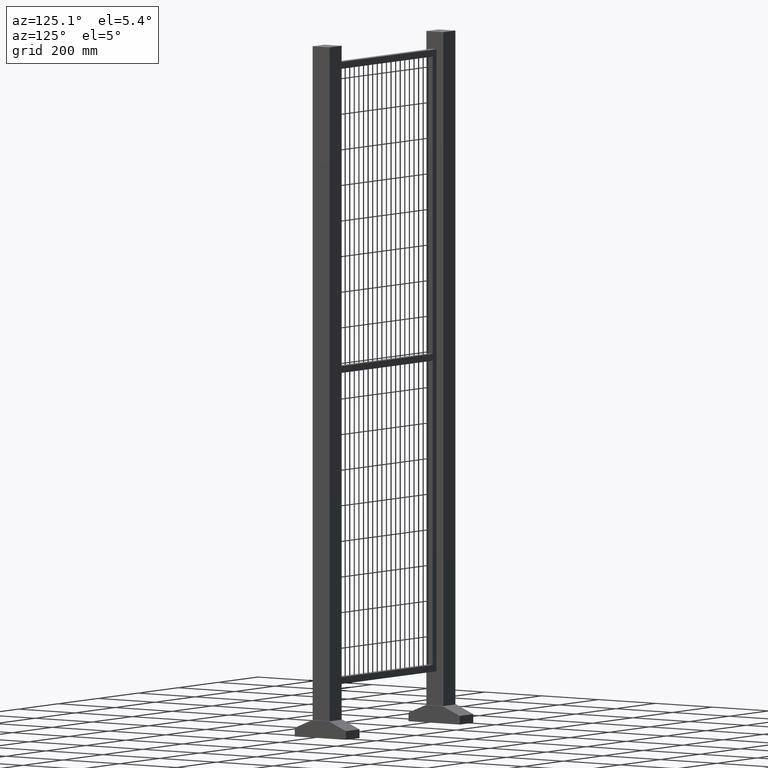
[diagram: clean part render]
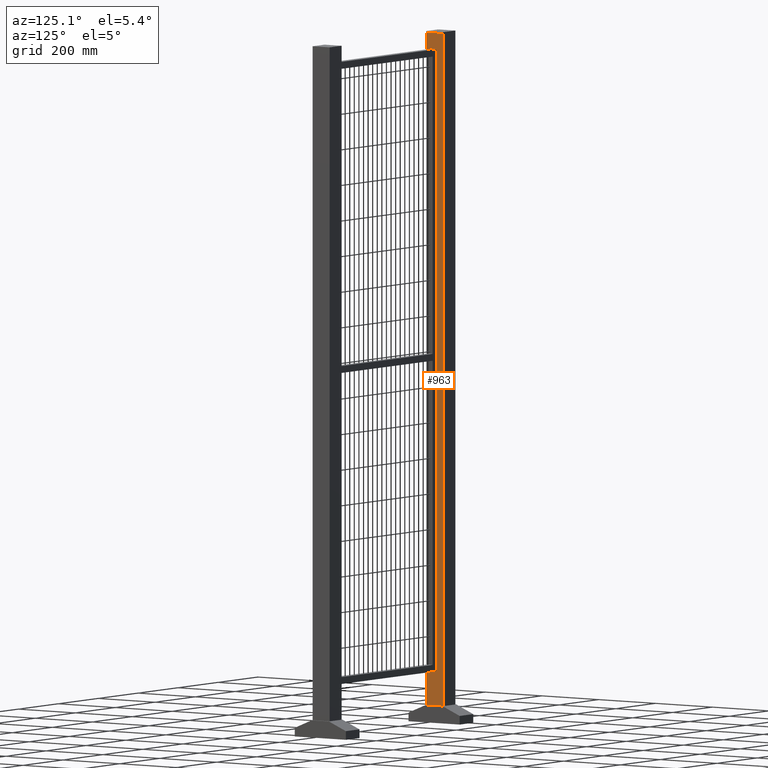
[diagram: same view with one face highlighted and labeled with its STEP entity id]
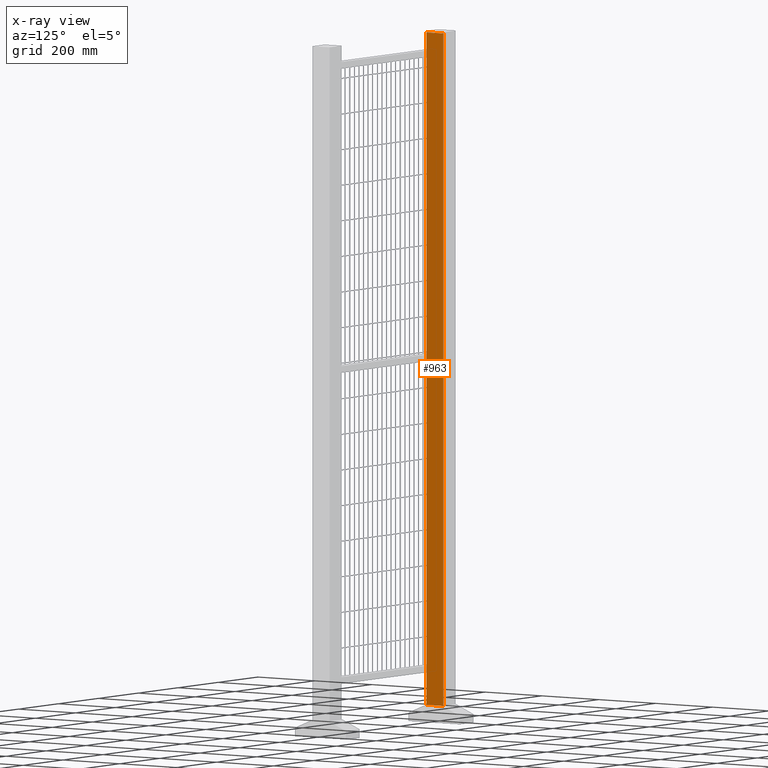
[diagram: x-ray of the same camera — body ghosted, the highlighted face saturated]
A machine part, auxiliary view. The second image highlights one B-rep face of the part: STEP entity #963.
The next image is the same camera in x-ray: the body ghosted, the highlighted face saturated — about 0% of this face is hidden behind the body in this view.
In plain terms, the highlighted planar face has unit normal (-1, 0, 0).
Its self-contained STEP definition (entity closure, byte-faithful):
#130=LINE('',#3347,#224);
#133=LINE('',#3353,#227);
#136=LINE('',#3359,#230);
#139=LINE('',#3364,#233);
#224=VECTOR('',#2862,1.);
#227=VECTOR('',#2867,1.);
#230=VECTOR('',#2872,1.);
#233=VECTOR('',#2877,1.);
#703=PLANE('',#2323);
#810=FACE_OUTER_BOUND('',#1311,.T.);
#963=ADVANCED_FACE('',(#810),#703,.F.);
#1311=EDGE_LOOP('',(#1647,#1648,#1649,#1650));
#1647=ORIENTED_EDGE('',*,*,#1983,.F.);
#1648=ORIENTED_EDGE('',*,*,#1992,.F.);
#1649=ORIENTED_EDGE('',*,*,#1989,.F.);
#1650=ORIENTED_EDGE('',*,*,#1986,.F.);
#1811=VERTEX_POINT('',#3346);
#1812=VERTEX_POINT('',#3348);
#1814=VERTEX_POINT('',#3354);
#1816=VERTEX_POINT('',#3360);
#1983=EDGE_CURVE('',#1811,#1812,#130,.T.);
#1986=EDGE_CURVE('',#1812,#1814,#133,.T.);
#1989=EDGE_CURVE('',#1814,#1816,#136,.T.);
#1992=EDGE_CURVE('',#1816,#1811,#139,.T.);
#2323=AXIS2_PLACEMENT_3D('',#3366,#2880,#2881);
#2862=DIRECTION('',(0.,0.,-1.));
#2867=DIRECTION('',(-1.,0.,0.));
#2872=DIRECTION('',(1.78286071528963E-18,0.,1.));
#2877=DIRECTION('',(1.,0.,0.));
#2880=DIRECTION('',(0.,1.,0.));
#2881=DIRECTION('',(0.,0.,1.));
#3346=CARTESIAN_POINT('',(30.,-30.,1996.));
#3347=CARTESIAN_POINT('',(30.,-30.,1996.));
#3348=CARTESIAN_POINT('',(30.,-30.,50.));
#3353=CARTESIAN_POINT('',(30.,-30.,50.));
#3354=CARTESIAN_POINT('',(-30.,-30.,50.));
#3359=CARTESIAN_POINT('',(-30.,-30.,50.));
#3360=CARTESIAN_POINT('',(-30.,-30.,1996.));
#3364=CARTESIAN_POINT('',(-30.,-30.,1996.));
#3366=CARTESIAN_POINT('',(0.,-30.,0.));